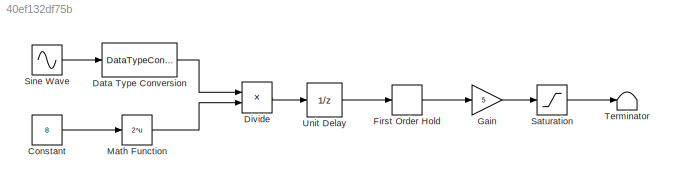
MODEL slx_40ef132df75b
KIND model
CONFIG AbsTol = auto
CONFIG EnableMultiTasking = off
CONFIG FixedStep = auto
CONFIG MaxStep = auto
CONFIG MinStep = auto
CONFIG RelTol = 1e-3
CONFIG SampleTimeConstraint = Unconstrained
CONFIG SolverName = VariableStepAuto
CONFIG StartTime = 0.0
CONFIG StopTime = 10.0
BLOCK [Constant] Constant
  Value = 8
BLOCK [DataTypeConversion] Data Type Conversion
  OutDataTypeStr = uint8
  RndMeth = Floor
  SaturateOnIntegerOverflow = off
BLOCK [Product] Divide
  Inputs = */
BLOCK [FirstOrderHold] First Order Hold
  ErrorTolerance = inf
BLOCK [Gain] Gain
  Gain = 5
BLOCK [Math] Math Function
  Operator = 2^u
BLOCK [Saturate] Saturation
  LowerLimit = 0
  UpperLimit = 5
BLOCK [Sin] Sine Wave
  Amplitude = 2^8/2
  Bias = 2^8/2
  Frequency = 10
  Phase = -pi /2
  SampleTime = 1e-4
BLOCK [Terminator] Terminator
BLOCK [UnitDelay] Unit Delay
  HasFrameUpgradeWarning = on
  SampleTime = -1
LINE Constant:1 -> Math Function:1
LINE Data Type Conversion:1 -> Divide:1
LINE Divide:1 -> Unit Delay:1
LINE First Order Hold:1 -> Gain:1
LINE Gain:1 -> Saturation:1
LINE Math Function:1 -> Divide:2
LINE Saturation:1 -> Terminator:1
LINE Sine Wave:1 -> Data Type Conversion:1
LINE Unit Delay:1 -> First Order Hold:1
